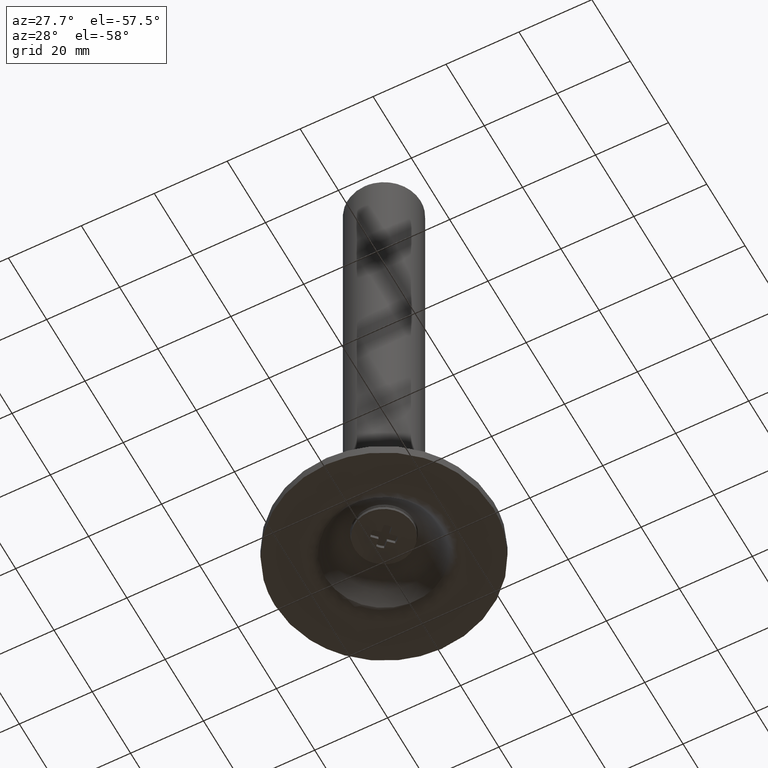
[diagram: clean part render]
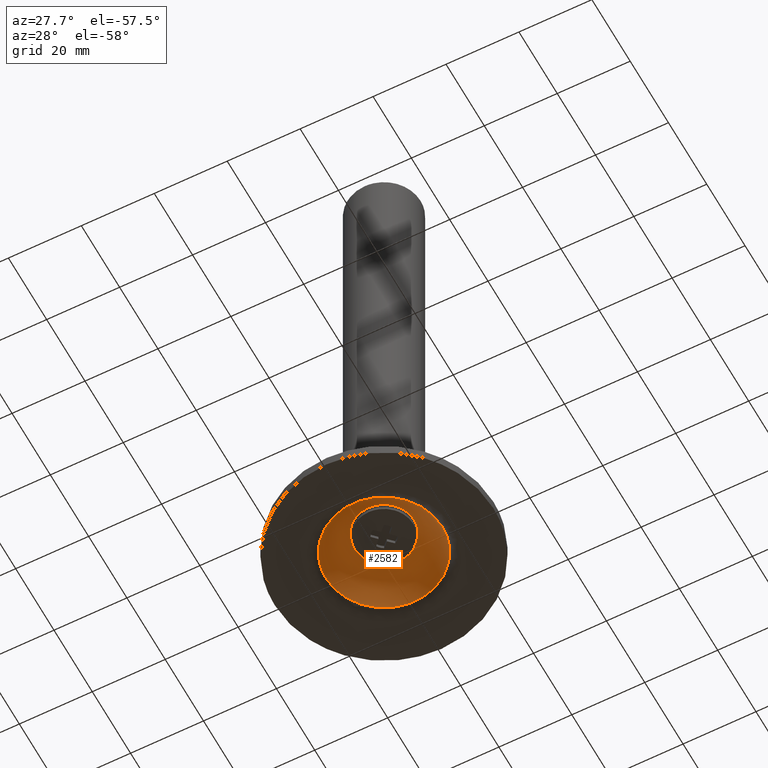
[diagram: same view with one face highlighted and labeled with its STEP entity id]
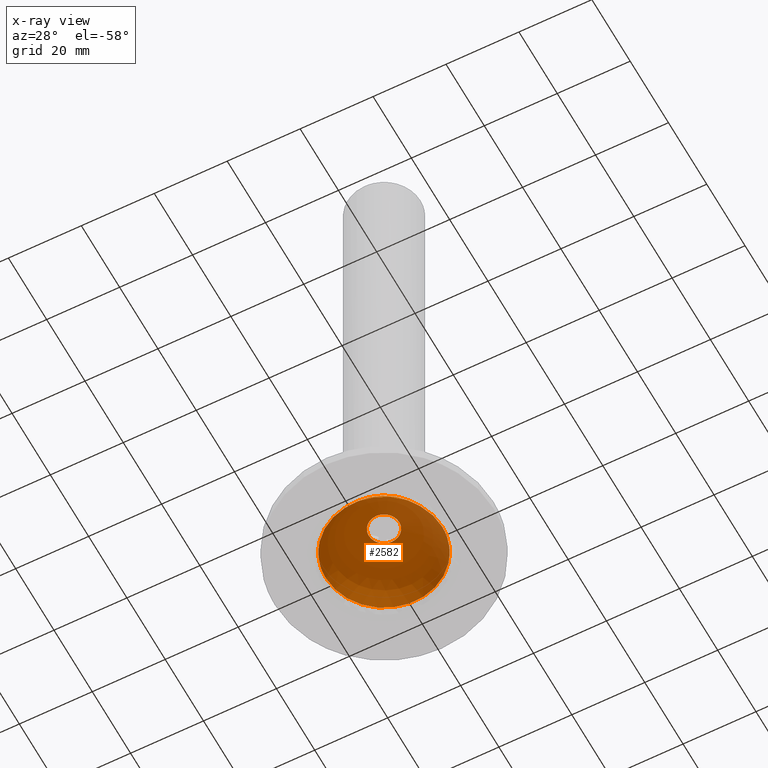
[diagram: x-ray of the same camera — body ghosted, the highlighted face saturated]
A machine part, auxiliary view. The second image highlights one B-rep face of the part: STEP entity #2582.
The next image is the same camera in x-ray: the body ghosted, the highlighted face saturated — about 0% of this face is hidden behind the body in this view.
In plain terms, the highlighted face is a freeform B-spline surface patch.
Its self-contained STEP definition (entity closure, byte-faithful):
#2219=CARTESIAN_POINT('',(2.815640575298503,3.072732495778803,12.489054482089140));
#2220=VERTEX_POINT('',#2219);
#2226=CARTESIAN_POINT('',(4.167674628230945,0.0,12.489054360205440));
#2227=VERTEX_POINT('',#2226);
#2228=CARTESIAN_POINT('',(2.815640575298503,3.072732495778803,12.489054482089140));
#2229=CARTESIAN_POINT('',(3.041214267748171,2.866083547706271,12.489054473892130));
#2230=CARTESIAN_POINT('',(3.494308234540864,2.348351251037978,12.489054453355710));
#2231=CARTESIAN_POINT('',(4.023784742542020,1.313556396911862,12.489054412309271));
#2232=CARTESIAN_POINT('',(4.167924789400038,0.467901213379122,12.489054378765321));
#2233=CARTESIAN_POINT('',(4.167674628230945,0.0,12.489054360205440));
#2234=B_SPLINE_CURVE_WITH_KNOTS('',3,(#2228,#2229,#2230,#2231,#2232,#2233),.UNSPECIFIED.,.F.,.U.,(4,1,1,4),(0.000000055261893,0.917776631779572,2.051487423490258,3.455157515039480),.UNSPECIFIED.);
#2235=EDGE_CURVE('',#2220,#2227,#2234,.T.);
#2237=CARTESIAN_POINT('',(-0.000002316024790,-4.167674628230301,12.489054360205440));
#2238=VERTEX_POINT('',#2237);
#2239=CARTESIAN_POINT('',(4.167674628230945,0.0,12.489054360205440));
#2240=CARTESIAN_POINT('',(4.167869960380499,-0.409184284815048,12.489054360205451));
#2241=CARTESIAN_POINT('',(4.066388151987664,-1.090995427747285,12.489054360205420));
#2242=CARTESIAN_POINT('',(3.699257501154684,-1.977306862852874,12.489054360205460));
#2243=CARTESIAN_POINT('',(3.242418293849080,-2.660989315407342,12.489054360205440));
#2244=CARTESIAN_POINT('',(2.588345892324810,-3.315164596051238,12.489054360205460));
#2245=CARTESIAN_POINT('',(1.768159031783384,-3.820614715677392,12.489054360205429));
#2246=CARTESIAN_POINT('',(0.852402096803320,-4.110571034904321,12.489054360205470));
#2247=CARTESIAN_POINT('',(0.272768636376623,-4.167706483026766,12.489054360205380));
#2248=CARTESIAN_POINT('',(-0.000002316024790,-4.167674628230301,12.489054360205440));
#2249=B_SPLINE_CURVE_WITH_KNOTS('',3,(#2239,#2240,#2241,#2242,#2243,#2244,#2245,#2246,#2247,#2248),.UNSPECIFIED.,.F.,.U.,(4,1,1,1,1,1,1,4),(0.000000079751919,1.227502026672231,2.045865751330598,2.864216188644317,3.682526007110419,4.807757313936431,5.728400894613425,6.546733582163632),.UNSPECIFIED.);
#2250=EDGE_CURVE('',#2227,#2238,#2249,.T.);
#2252=CARTESIAN_POINT('',(-2.815640575298496,-3.072732495778795,12.489054482089140));
#2253=VERTEX_POINT('',#2252);
#2254=CARTESIAN_POINT('',(-0.000002316024790,-4.167674628230301,12.489054360205440));
#2255=CARTESIAN_POINT('',(-0.354241015833074,-4.167774616393060,12.489054375539760));
#2256=CARTESIAN_POINT('',(-0.966028264760486,-4.089174423829050,12.489054402022880));
#2257=CARTESIAN_POINT('',(-1.939040651161129,-3.736566041374138,12.489054444142781));
#2258=CARTESIAN_POINT('',(-2.507101175878150,-3.355719156786807,12.489054468733030));
#2259=CARTESIAN_POINT('',(-2.815640575298496,-3.072732495778795,12.489054482089140));
#2260=B_SPLINE_CURVE_WITH_KNOTS('',3,(#2254,#2255,#2256,#2257,#2258,#2259),.UNSPECIFIED.,.F.,.U.,(4,1,1,4),(0.000000034345960,1.062713737695390,1.835567920539524,3.091501992761342),.UNSPECIFIED.);
#2261=EDGE_CURVE('',#2238,#2253,#2260,.T.);
#2291=CARTESIAN_POINT('',(-4.167674628230945,0.0,12.489054360205440));
#2292=VERTEX_POINT('',#2291);
#2293=CARTESIAN_POINT('',(-2.815640575298496,-3.072732495778795,12.489054482089140));
#2294=CARTESIAN_POINT('',(-3.041232558481059,-2.866091927512661,12.489054473892489));
#2295=CARTESIAN_POINT('',(-3.434583155026725,-2.416436650187845,12.489054456056349));
#2296=CARTESIAN_POINT('',(-3.995288763449335,-1.403253567685449,12.489054415867280));
#2297=CARTESIAN_POINT('',(-4.168261414685117,-0.557978809268327,12.489054382338271));
#2298=CARTESIAN_POINT('',(-4.167674628230945,0.0,12.489054360205440));
#2299=B_SPLINE_CURVE_WITH_KNOTS('',3,(#2293,#2294,#2295,#2296,#2297,#2298),.UNSPECIFIED.,.F.,.U.,(4,1,1,4),(0.000000055261695,0.917776631779381,1.781535829666948,3.455157515039478),.UNSPECIFIED.);
#2300=EDGE_CURVE('',#2253,#2292,#2299,.T.);
#2302=CARTESIAN_POINT('',(0.000002316024833,4.167674628230301,12.489054360205440));
#2303=VERTEX_POINT('',#2302);
#2304=CARTESIAN_POINT('',(-4.167674628230945,0.0,12.489054360205440));
#2305=CARTESIAN_POINT('',(-4.168250663864994,0.545644495167154,12.489054360205460));
#2306=CARTESIAN_POINT('',(-3.977416779921059,1.499849067748676,12.489054360205420));
#2307=CARTESIAN_POINT('',(-3.268613855858423,2.682521707544498,12.489054360205460));
#2308=CARTESIAN_POINT('',(-2.425741595759319,3.446234166947827,12.489054360205429));
#2309=CARTESIAN_POINT('',(-1.329472959766902,4.015073874218065,12.489054360205481));
#2310=CARTESIAN_POINT('',(-0.511521116567738,4.168084181920800,12.489054360205390));
#2311=CARTESIAN_POINT('',(0.000002316024833,4.167674628230301,12.489054360205440));
#2312=B_SPLINE_CURVE_WITH_KNOTS('',3,(#2304,#2305,#2306,#2307,#2308,#2309,#2310,#2311),.UNSPECIFIED.,.F.,.U.,(4,1,1,1,1,4),(0.000000079751962,1.636684219023247,2.864216188644271,4.091699556169511,5.012343134737420,6.546733582163655),.UNSPECIFIED.);
#2313=EDGE_CURVE('',#2292,#2303,#2312,.T.);
#2315=CARTESIAN_POINT('',(0.000002316024833,4.167674628230301,12.489054360205440));
#2316=CARTESIAN_POINT('',(0.483081607415087,4.168027664741909,12.489054381117031));
#2317=CARTESIAN_POINT('',(1.513303784536087,3.986426487927049,12.489054425713430));
#2318=CARTESIAN_POINT('',(2.412343928114551,3.443052777705091,12.489054464631170));
#2319=CARTESIAN_POINT('',(2.815640575298503,3.072732495778803,12.489054482089140));
#2320=B_SPLINE_CURVE_WITH_KNOTS('',3,(#2315,#2316,#2317,#2318,#2319),.UNSPECIFIED.,.F.,.U.,(4,1,4),(0.000000034346102,1.449147475400789,3.091501992761302),.UNSPECIFIED.);
#2321=EDGE_CURVE('',#2303,#2220,#2320,.T.);
#2480=CARTESIAN_POINT('',(-12.007220716040598,-12.007220716032515,-4.954843889530767));
#2481=CARTESIAN_POINT('',(-8.157473287541416,-16.314946575174869,0.804263080914388));
#2482=CARTESIAN_POINT('',(8.157473287644148,-16.314946575174869,0.804263080739947));
#2483=CARTESIAN_POINT('',(12.007220716020178,-12.007220716032515,-4.954843889787528));
#2484=CARTESIAN_POINT('',(-16.314946575134194,-8.157473287582089,0.804263080983446));
#2485=CARTESIAN_POINT('',(-12.721429661114181,-12.721429661258171,13.007599051782670));
#2486=CARTESIAN_POINT('',(12.721429661477870,-12.721429661258171,13.007599051510640));
#2487=CARTESIAN_POINT('',(16.314946575236927,-8.157473287582089,0.804263080634573));
#2488=CARTESIAN_POINT('',(-16.314946575134194,8.157473287603475,0.804263080947141));
#2489=CARTESIAN_POINT('',(-12.721429661114181,12.721429661333870,13.007599051726061));
#2490=CARTESIAN_POINT('',(12.721429661477870,12.721429661333870,13.007599051454021));
#2491=CARTESIAN_POINT('',(16.314946575236927,8.157473287603475,0.804263080598268));
#2492=CARTESIAN_POINT('',(-12.007220716040598,12.007220716028268,-4.954843889584213));
#2493=CARTESIAN_POINT('',(-8.157473287541416,16.314946575196252,0.804263080841771));
#2494=CARTESIAN_POINT('',(8.157473287644148,16.314946575196252,0.804263080667329));
#2495=CARTESIAN_POINT('',(12.007220716020178,12.007220716028268,-4.954843889840975));
#2503=(BOUNDED_SURFACE()B_SPLINE_SURFACE(2,2,((#2480,#2484,#2488,#2492),(#2481,#2485,#2489,#2493),(#2482,#2486,#2490,#2494),(#2483,#2487,#2491,#2495)),.UNSPECIFIED.,.F.,.F.,.U.)B_SPLINE_SURFACE_WITH_KNOTS((3,1,3),(3,1,3),(0.0,19.881259642051411,39.762519284102822),(0.0,19.881259642051418,39.762519284102829),.UNSPECIFIED.)GEOMETRIC_REPRESENTATION_ITEM()RATIONAL_B_SPLINE_SURFACE(((2.118963240895892,1.559481620447946,1.559481620447946,2.118963240895892),(1.559481620447946,1.0,1.0,1.559481620447946),(1.559481620447946,1.0,1.0,1.559481620447946),(2.118963240895892,1.559481620447946,1.559481620447946,2.118963240895892)))REPRESENTATION_ITEM('')SURFACE());
#2504=CARTESIAN_POINT('',(-15.953341218199091,0.0,1.894856187925218));
#2505=VERTEX_POINT('',#2504);
#2506=CARTESIAN_POINT('',(14.833041536141840,5.872816599845070,1.894856187582985));
#2507=VERTEX_POINT('',#2506);
#2508=CARTESIAN_POINT('',(-15.953341218199091,0.0,1.894856187925218));
#2509=CARTESIAN_POINT('',(-15.953388598954570,0.803985250622462,1.894856187923573));
#2510=CARTESIAN_POINT('',(-15.831539876528010,2.411935841102888,1.894856187918976));
#2511=CARTESIAN_POINT('',(-15.326533058298660,4.600512450941970,1.894856187909083));
#2512=CARTESIAN_POINT('',(-14.491707437854471,6.806548084444788,1.894856187895613));
#2513=CARTESIAN_POINT('',(-13.147066645155009,9.224725048442114,1.894856187876245));
#2514=CARTESIAN_POINT('',(-11.043794645895399,11.684929279555210,1.894856187848644));
#2515=CARTESIAN_POINT('',(-8.557141733079247,13.565170772156041,1.894856187818134));
#2516=CARTESIAN_POINT('',(-6.194198381789312,14.763152467526981,1.894856187790340));
#2517=CARTESIAN_POINT('',(-3.683410103230410,15.605022665878780,1.894856187761680));
#2518=CARTESIAN_POINT('',(-0.715485903284987,16.055871272708011,1.894856187728923));
#2519=CARTESIAN_POINT('',(2.225147872804654,15.879446509157299,1.894856187697743));
#2520=CARTESIAN_POINT('',(4.801036283497381,15.268884719870680,1.894856187671363));
#2521=CARTESIAN_POINT('',(7.321798555106730,14.282524255814900,1.894856187646344));
#2522=CARTESIAN_POINT('',(9.718226240578488,12.773279962060380,1.894856187623727));
#2523=CARTESIAN_POINT('',(11.570410854890230,11.043791275903310,1.894856187607401));
#2524=CARTESIAN_POINT('',(13.339093194255440,8.925214241087780,1.894856187592765));
#2525=CARTESIAN_POINT('',(14.304986754747819,7.207928249912111,1.894856187585916));
#2526=CARTESIAN_POINT('',(14.833041536141840,5.872816599845070,1.894856187582985));
#2527=B_SPLINE_CURVE_WITH_KNOTS('',3,(#2508,#2509,#2510,#2511,#2512,#2513,#2514,#2515,#2516,#2517,#2518,#2519,#2520,#2521,#2522,#2523,#2524,#2525,#2526),.UNSPECIFIED.,.F.,.U.,(4,1,1,1,1,1,1,1,1,1,1,1,1,1,1,1,4),(0.000000129753069,2.411957312805676,4.823914434629288,6.719084488627154,9.475639922538470,13.093647838013130,16.367084264965051,18.779070108268350,21.018806781656640,24.292054686682000,27.737796512876152,29.805222003250570,32.217203764552210,35.835194620555427,38.247203153301591,39.797800123576643,44.104845931392838),.UNSPECIFIED.);
#2528=EDGE_CURVE('',#2505,#2507,#2527,.T.);
#2529=ORIENTED_EDGE('',*,*,#2528,.T.);
#2530=CARTESIAN_POINT('',(15.953341218199100,0.0,1.894856187925220));
#2531=VERTEX_POINT('',#2530);
#2532=CARTESIAN_POINT('',(14.833041536141840,5.872816599845070,1.894856187582985));
#2533=CARTESIAN_POINT('',(15.179065272803580,4.999105463126075,1.894856187635823));
#2534=CARTESIAN_POINT('',(15.751761307558690,3.069721124627624,1.894856187750452));
#2535=CARTESIAN_POINT('',(15.953504257744470,1.065038977968152,1.894856187865338));
#2536=CARTESIAN_POINT('',(15.953341218199100,0.0,1.894856187925220));
#2537=B_SPLINE_CURVE_WITH_KNOTS('',3,(#2532,#2533,#2534,#2535,#2536),.UNSPECIFIED.,.F.,.U.,(4,1,4),(4.574214E-009,2.819207528937176,6.014302727043342),.UNSPECIFIED.);
#2538=EDGE_CURVE('',#2507,#2531,#2537,.T.);
#2539=ORIENTED_EDGE('',*,*,#2538,.T.);
#2540=CARTESIAN_POINT('',(-14.833041536141840,-5.872816599845072,1.894856187582985));
#2541=VERTEX_POINT('',#2540);
#2542=CARTESIAN_POINT('',(15.953341218199100,0.0,1.894856187925220));
#2543=CARTESIAN_POINT('',(15.953781291379650,-1.378304672959128,1.894856187922404));
#2544=CARTESIAN_POINT('',(15.706200659836810,-3.273194205150353,1.894856187915874));
#2545=CARTESIAN_POINT('',(14.922262006825161,-5.738904283169185,1.894856187902419));
#2546=CARTESIAN_POINT('',(14.098829109550911,-7.577103874230882,1.894856187889829));
#2547=CARTESIAN_POINT('',(12.657582409125821,-9.868403843872162,1.894856187869664));
#2548=CARTESIAN_POINT('',(10.844262214140420,-11.812735598678600,1.894856187846269));
#2549=CARTESIAN_POINT('',(8.733307725158420,-13.408763966042260,1.894856187820315));
#2550=CARTESIAN_POINT('',(6.424482626198848,-14.707994590504340,1.894856187792934));
#2551=CARTESIAN_POINT('',(3.684555548571244,-15.626630682691840,1.894856187761641));
#2552=CARTESIAN_POINT('',(0.884783346476225,-15.989850603988449,1.894856187730885));
#2553=CARTESIAN_POINT('',(-1.474962487907122,-15.937724974443080,1.894856187705661));
#2554=CARTESIAN_POINT('',(-3.974701274075743,-15.528033951869149,1.894856187679705));
#2555=CARTESIAN_POINT('',(-6.595006507788372,-14.631002534591980,1.894856187653398));
#2556=CARTESIAN_POINT('',(-8.948704697187317,-13.286783908461260,1.894856187630933));
#2557=CARTESIAN_POINT('',(-11.014729241008901,-11.631608119138010,1.894856187612159));
#2558=CARTESIAN_POINT('',(-13.111834583232840,-9.329348499274847,1.894856187594373));
#2559=CARTESIAN_POINT('',(-14.304989393062430,-7.207913678807281,1.894856187585919));
#2560=CARTESIAN_POINT('',(-14.833041536141840,-5.872816599845072,1.894856187582985));
#2561=B_SPLINE_CURVE_WITH_KNOTS('',3,(#2542,#2543,#2544,#2545,#2546,#2547,#2548,#2549,#2550,#2551,#2552,#2553,#2554,#2555,#2556,#2557,#2558,#2559,#2560),.UNSPECIFIED.,.F.,.U.,(4,1,1,1,1,1,1,1,1,1,1,1,1,1,1,1,4),(0.000000129751257,4.134763876847849,5.685370084795068,7.752797533212309,10.164782079410561,13.782771497902489,15.677936742627260,18.089938642054459,21.707899404609030,24.292054686682249,26.531819609604678,28.771509986319071,31.872640841617550,34.801485378528461,36.868907456621237,39.797800123576692,44.104845931392873),.UNSPECIFIED.);
#2562=EDGE_CURVE('',#2531,#2541,#2561,.T.);
#2563=ORIENTED_EDGE('',*,*,#2562,.T.);
#2564=CARTESIAN_POINT('',(-14.833041536141840,-5.872816599845072,1.894856187582985));
#2565=CARTESIAN_POINT('',(-15.271462433123441,-4.766149407709325,1.894856187649916));
#2566=CARTESIAN_POINT('',(-15.799532209668159,-2.819190073871220,1.894856187765046));
#2567=CARTESIAN_POINT('',(-15.953374311879140,-0.814433323819721,1.894856187879426));
#2568=CARTESIAN_POINT('',(-15.953341218199091,0.0,1.894856187925218));
#2569=B_SPLINE_CURVE_WITH_KNOTS('',3,(#2564,#2565,#2566,#2567,#2568),.UNSPECIFIED.,.F.,.U.,(4,1,4),(4.574249E-009,3.570986387246215,6.014302727043340),.UNSPECIFIED.);
#2570=EDGE_CURVE('',#2541,#2505,#2569,.T.);
#2571=ORIENTED_EDGE('',*,*,#2570,.T.);
#2572=EDGE_LOOP('',(#2529,#2539,#2563,#2571));
#2573=FACE_OUTER_BOUND('',#2572,.T.);
#2574=ORIENTED_EDGE('',*,*,#2313,.F.);
#2575=ORIENTED_EDGE('',*,*,#2300,.F.);
#2576=ORIENTED_EDGE('',*,*,#2261,.F.);
#2577=ORIENTED_EDGE('',*,*,#2250,.F.);
#2578=ORIENTED_EDGE('',*,*,#2235,.F.);
#2579=ORIENTED_EDGE('',*,*,#2321,.F.);
#2580=EDGE_LOOP('',(#2574,#2575,#2576,#2577,#2578,#2579));
#2581=FACE_BOUND('',#2580,.T.);
#2582=ADVANCED_FACE('',(#2573,#2581),#2503,.F.);